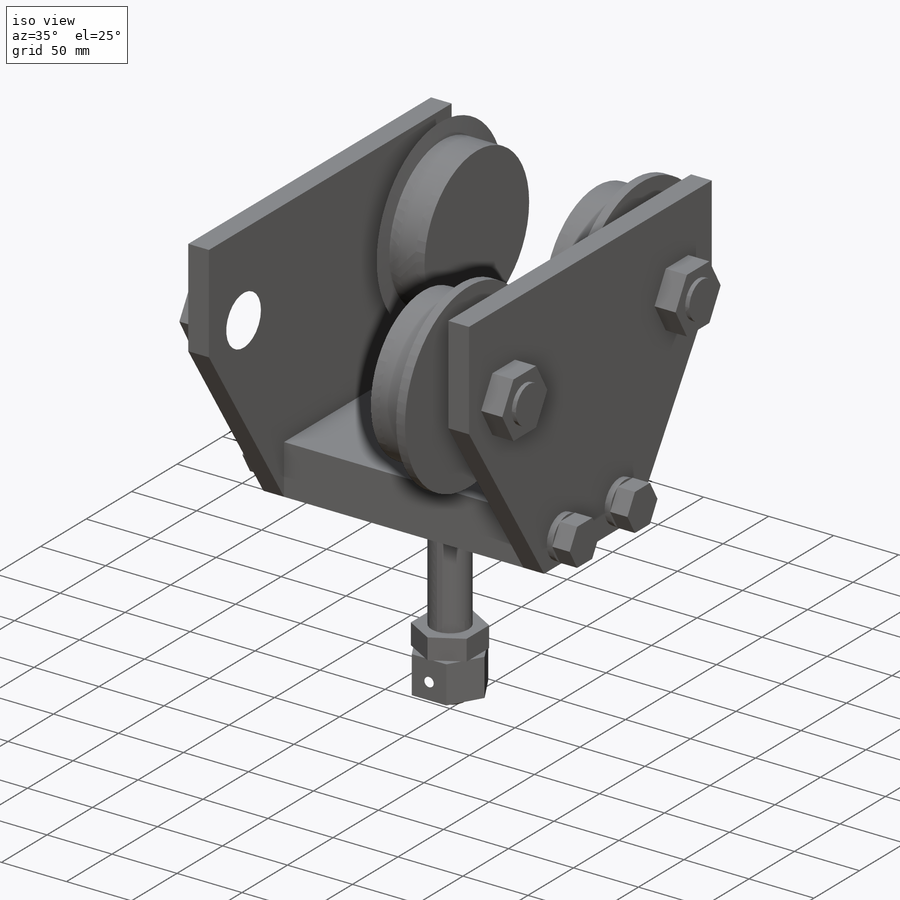
[diagram: iso view]
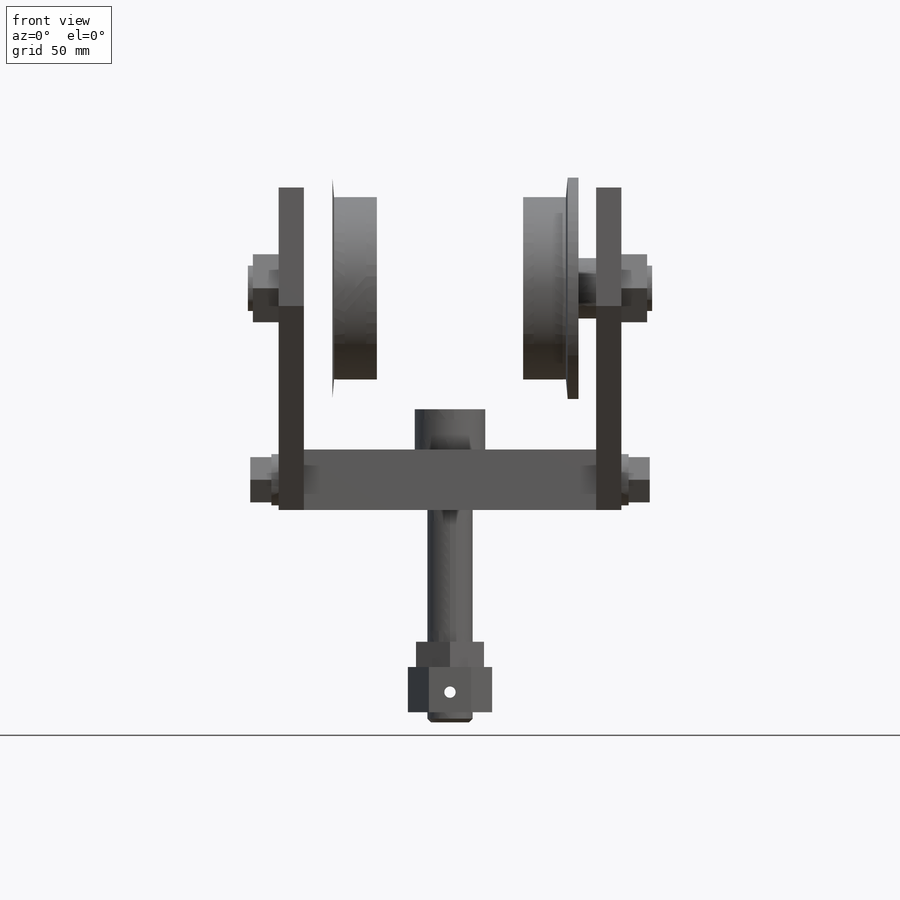
[diagram: front view]
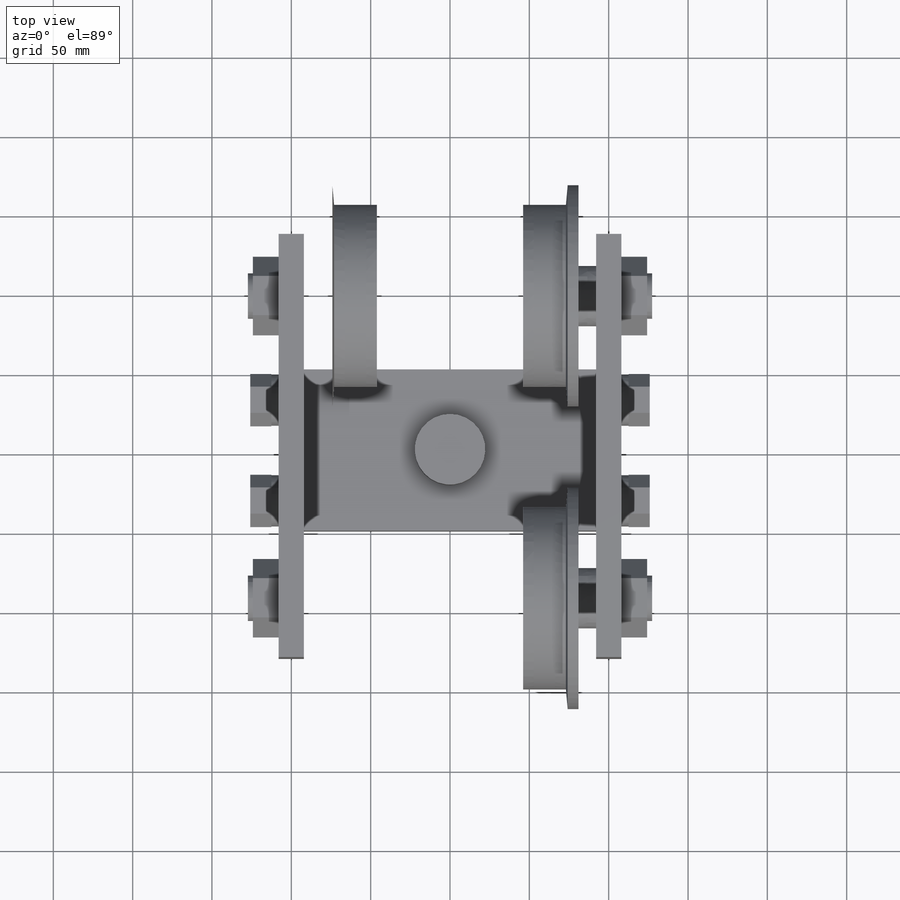
[diagram: top view]
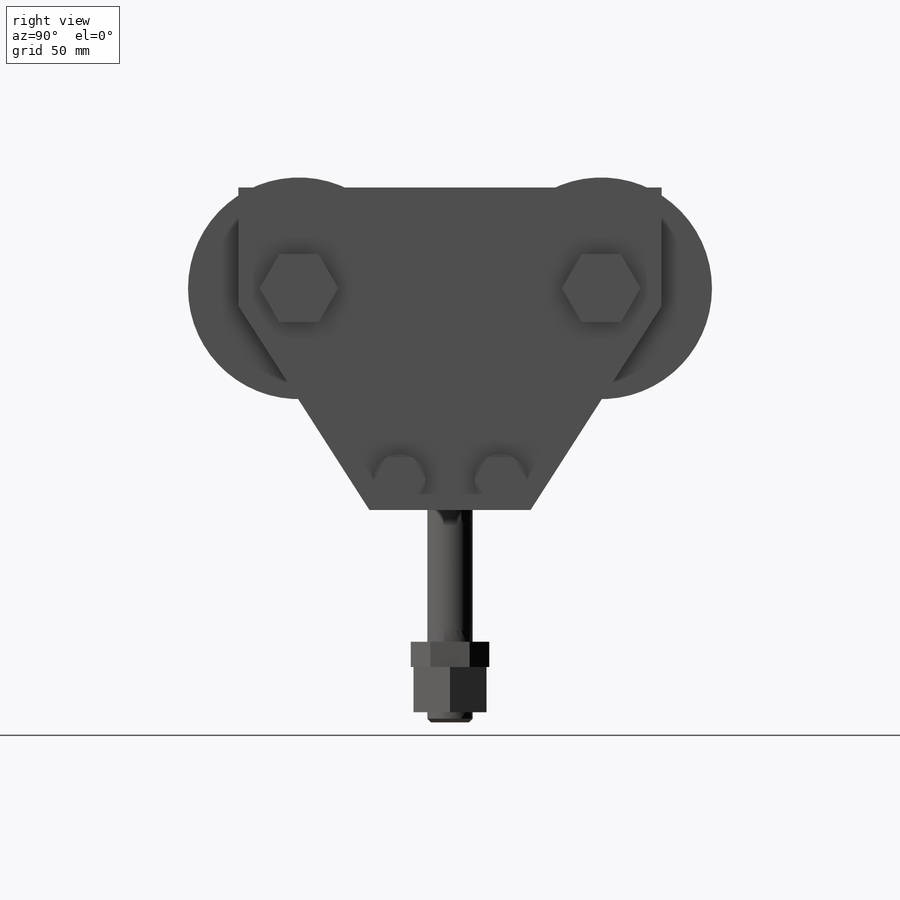
[diagram: right view]
SOLIDWORKS PART (.sldprt)
format: sldprt  version: not decoded by parser v0  size: 797,184 bytes
history: native  units: mm
features: sketch x14, extrude x12, plane x11, mirror x5, material x1, chamfer x1, revolve x1, cut_extrude x1 (+11 scaffold rows collapsed)
feature tree (57):
  scaffold x11  (default folders/planes/origin — collapsed)
  material  "Material <not specified>"
  plane  "Z PLANE"  Offset=0mm
  plane  "YOKE BOTTOM"  Offset=0mm
  plane  "X PLANE"  Offset=0mm
  sketch  "YOKE CROSS SECTION"  dims[D1=38.1mm D2=101.6mm]
  plane  "1/2 YOKE LENGTH (A)"  Offset=92.101483mm
  plane  "WHEEL LOCATION"  Offset=95.25mm
  extrude  "YOKE"  [1 undecoded]
  sketch  "SIDEPLATE PROFILE"  dims[c1.D1=~128.517772mm c1.D2=~128.517772mm c1.D3=203.2mm c1.D4=203.2mm c2.D1=50.8mm c2.D2=50.8mm c2.D3=82.55mm c2.D4=82.55mm c2.D5=~128.517772mm c2.D6=~128.517772mm c2.D7=~74.682228mm c2.D8=~74.682228mm c2.D9=266.7mm]
  plane  "WHEEL HEIGHT"  Offset=139.7mm
  plane  "YOKE SCREW LOCATION Z"  Offset=31.75mm
  plane  "YOKE SCREW LOCATION Y"  Offset=19.05mm
  extrude  "SIDEPLATE"  Depth=15.875mm
  sketch  "WHEEL PIN NUT PROFILE"  dims[D1=42.8625mm D2=47.625mm]
  extrude  "WHEEL PIN NUT"  Depth=16.2306mm
  sketch  "WHEEL PIN PROJECTION PROFILE"  dims[D1=28.575mm D2=47.625mm]
  extrude  "WHEEL PIN PROJECTION"  Depth=3.175mm
  sketch  "LOCKNUTS PROFILE"  dims[D1=32.258mm]
  extrude  "LOCKNUTS"  Depth=4.572mm
  sketch  "SCREWS PROFILE"  dims[D1=28.575mm]
  extrude  "SCREWS"  Depth=13.3096mm
  sketch  "PROFILE"  dims[D1=44.45mm]
  extrude  "KING BOLT HEAD"  Depth=25.4mm
  mirror  "Mirror1"
  mirror  "Mirror YOKE SCREWS"
  mirror  "Mirror SIDE 1"
  plane  "TOP OF NUT"  Offset=83.052101mm
  sketch  "DIA."  dims[D1=28.575mm]
  extrude  "KING BOLT"  [1 undecoded]
  sketch  "KING BOLT JAN NUT PROFILE"  dims[D1=42.8752mm]
  extrude  "KING BOLT JAM NUT"  Depth=15.875mm
  sketch  "KING BOLT NUT PROFILE"  dims[c1.D1=46.0375mm c1.D2=44.45mm c2.D1=0.0mm]
  extrude  "KING BOLT NUT"  Depth=28.575mm
  sketch  "Sketch5"
  extrude  "EXTENDED KING BOLT"  Depth=6.35mm
  chamfer  "Chamfer1"  Distance=2.38125mm Angle=45deg
  plane  "MOUNTING REF PLANE"  Offset=34.925mm
  sketch  "Sketch6"  dims[c1.D11=88.9mm c1.D10=88.9mm c1.D1=19.05mm c1.D2=69.85mm c1.D3=~52.954692mm c1.D4=57.15mm c1.D5=69.85mm c1.D6=11.1125mm c1.D7=11.1125mm c1.D8=19.05mm c1.D9=46.0375mm c2.D10=46.0375mm c2.D12=~12.748512mm c2.D1=11.1125mm c2.D2=~17.938894mm c2.D3=19.05mm c2.D4=46.0375mm c2.D5=19.05mm c2.D6=~52.954692mm c2.D7=57.15mm c2.D8=69.85mm c2.D9=69.85mm c2.D11=46.0375mm c3.D6=~57.495785mm]
  revolve  "WHEEL"  Angle=360deg
  mirror  "Mirror2"
  mirror  "Mirror3"
  sketch  "Sketch7"  dims[D2=~7.14375mm D1=12.7mm]
  cut_extrude  "COTTER PIN HOLE"  [1 undecoded]
  sketch  "Sketch8"  dims[D1=50.8mm D2=60.325mm]
  extrude  "SPACER"  Depth=12.7mm
  plane  "TREAD OF TRACK"  Offset=82.55mm
decode coverage: 25 of 34 modeling features carry decoded parameters
note: ~ marks probable driven/reference dimensions
note: 3 parameter values undecoded
summary: no parameter record found for 3 features
note: suppression state not decoded; provenance and decode notes live in map.json
